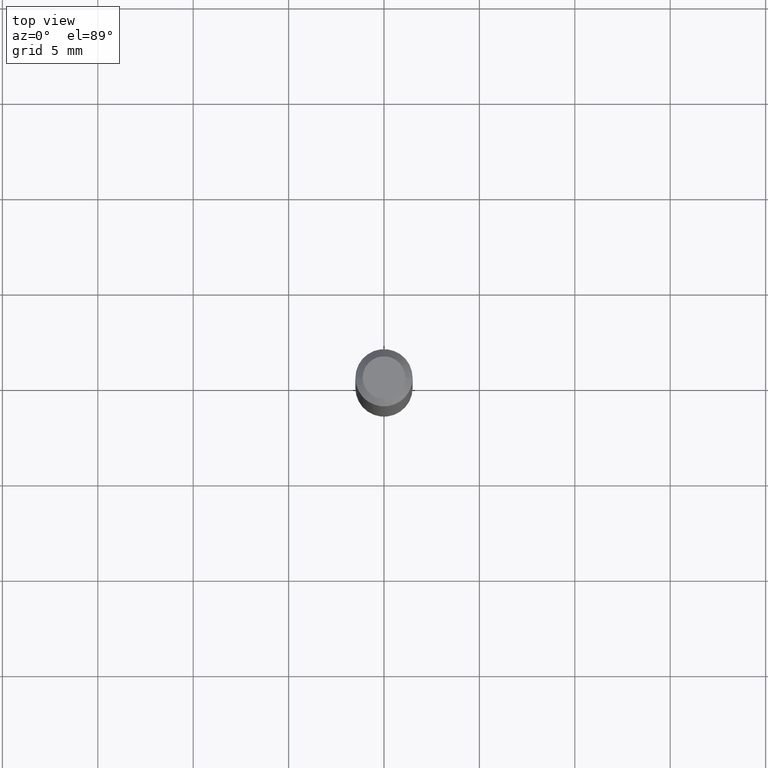
[diagram: clean part render]
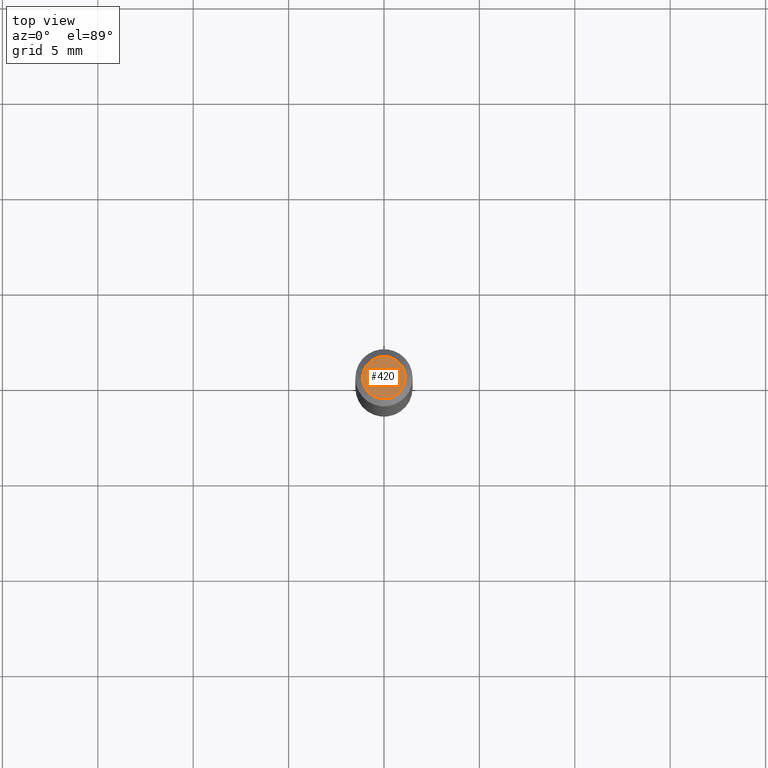
[diagram: same view with one face highlighted and labeled with its STEP entity id]
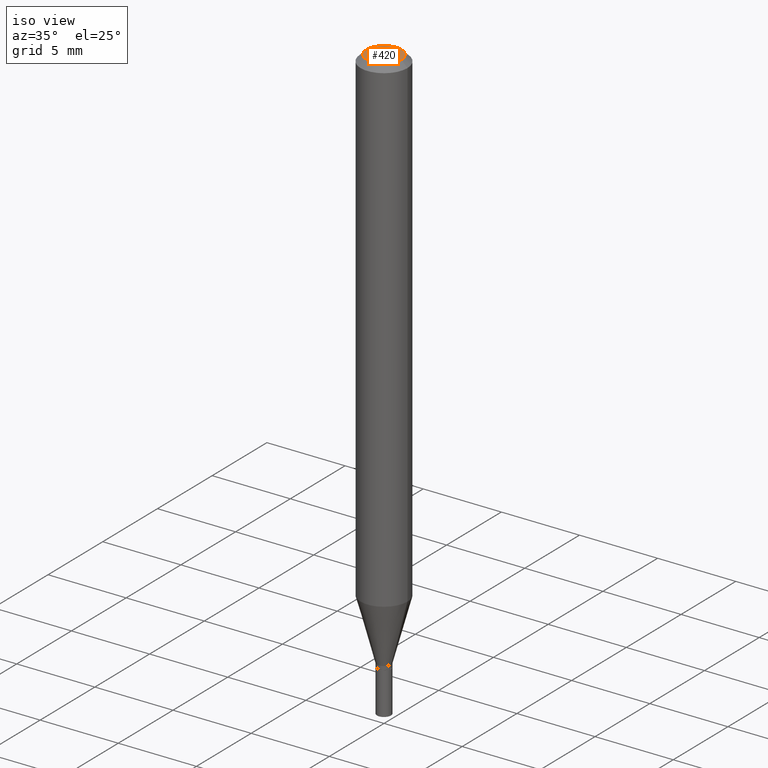
[diagram: same view with one face highlighted and labeled with its STEP entity id]
A machine part, top view. The second image highlights one B-rep face of the part: STEP entity #420.
A second angle (iso view) of the same face is appended — the face is thin or edge-on in the first view.
In plain terms, the highlighted planar face has unit normal (0, -0, -1).
Its self-contained STEP definition (entity closure, byte-faithful):
#6 = DIRECTION ( 'NONE',  ( 2.438088387897960049E-29, -3.491481338843145188E-15, -1.000000000000000000 ) ) ;
#23 = EDGE_LOOP ( 'NONE', ( #447, #226 ) ) ;
#56 = VERTEX_POINT ( 'NONE', #239 ) ;
#100 = AXIS2_PLACEMENT_3D ( 'NONE', #402, #6, #396 ) ;
#104 = DIRECTION ( 'NONE',  ( 1.000000000000000000, -6.982962677686265922E-15, 4.888540261209747396E-29 ) ) ;
#134 = DIRECTION ( 'NONE',  ( -2.445468806185136597E-29, 3.491481338843145583E-15, 1.000000000000000000 ) ) ;
#143 = CIRCLE ( 'NONE', #354, 0.04404999999999999888 ) ;
#162 = CARTESIAN_POINT ( 'NONE',  ( -2.672865154728371978E-45, 3.816143058285937292E-31, 1.092986812167916054E-16 ) ) ;
#164 = CARTESIAN_POINT ( 'NONE',  ( -2.672865154728371978E-45, 3.816143058285937292E-31, 1.092986812167916054E-16 ) ) ;
#173 = EDGE_CURVE ( 'NONE', #56, #302, #143, .T. ) ;
#202 = DIRECTION ( 'NONE',  ( -2.445468806185136597E-29, 3.491481338843145583E-15, 1.000000000000000000 ) ) ;
#215 = FACE_OUTER_BOUND ( 'NONE', #23, .T. ) ;
#226 = ORIENTED_EDGE ( 'NONE', *, *, #266, .T. ) ;
#239 = CARTESIAN_POINT ( 'NONE',  ( -0.04404999999999999888, 3.337856159934036604E-16, 1.092986812167893621E-16 ) ) ;
#266 = EDGE_CURVE ( 'NONE', #302, #56, #370, .T. ) ;
#302 = VERTEX_POINT ( 'NONE', #432 ) ;
#348 = DIRECTION ( 'NONE',  ( 1.000000000000000000, -6.982962677686265922E-15, 4.888540261209747396E-29 ) ) ;
#354 = AXIS2_PLACEMENT_3D ( 'NONE', #164, #202, #104 ) ;
#370 = CIRCLE ( 'NONE', #422, 0.04404999999999999888 ) ;
#396 = DIRECTION ( 'NONE',  ( -1.000000000000000000, 6.982962677686265922E-15, -4.876176775795935793E-29 ) ) ;
#402 = CARTESIAN_POINT ( 'NONE',  ( 3.075995059520799729E-16, 0.04404999999999999888, -9.915041236764475073E-17 ) ) ;
#420 = ADVANCED_FACE ( 'NONE', ( #215 ), #437, .F. ) ;
#422 = AXIS2_PLACEMENT_3D ( 'NONE', #162, #134, #348 ) ;
#432 = CARTESIAN_POINT ( 'NONE',  ( 0.04404999999999999888, -3.798447818264458600E-16, 1.092986812167939966E-16 ) ) ;
#437 = PLANE ( 'NONE',  #100 ) ;
#447 = ORIENTED_EDGE ( 'NONE', *, *, #173, .T. ) ;